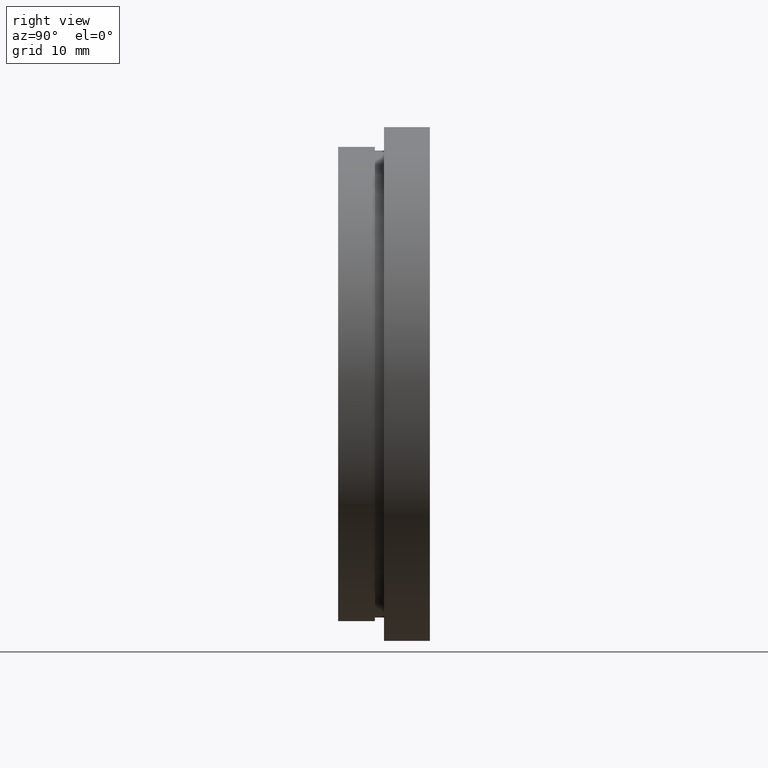
[diagram: clean part render]
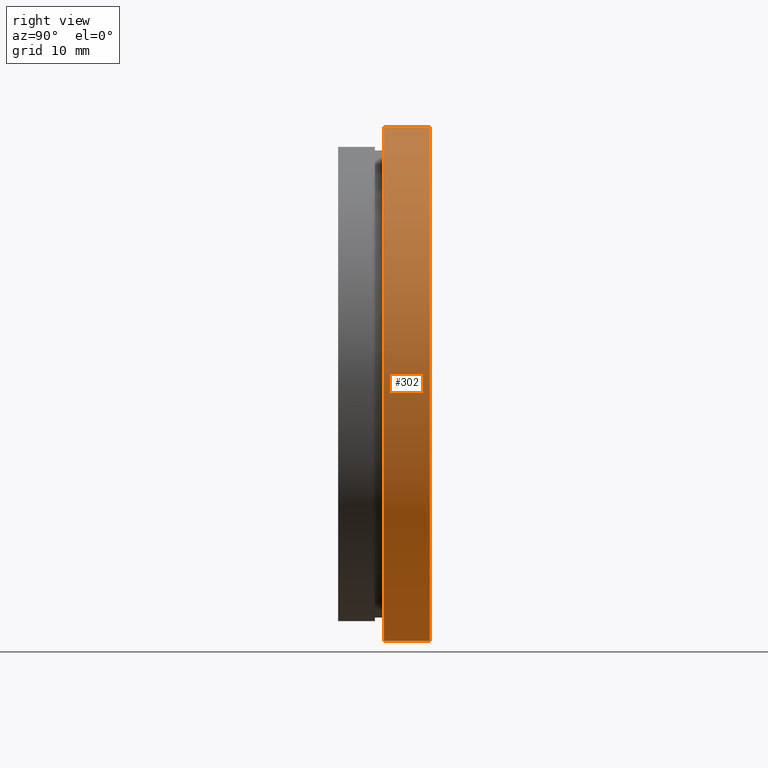
[diagram: same view with one face highlighted and labeled with its STEP entity id]
A machine part, right view. The second image highlights one B-rep face of the part: STEP entity #302.
In plain terms, the highlighted cylindrical surface (partial cylindrical patch) has radius 28 mm, axis along (-0, 1, -0).
Its self-contained STEP definition (entity closure, byte-faithful):
#12 = EDGE_CURVE ( 'NONE', #596, #565, #466, .T. ) ;
#15 = EDGE_CURVE ( 'NONE', #596, #142, #135, .T. ) ;
#24 = CARTESIAN_POINT ( 'NONE',  ( 3.429011037612589700E-015, 9.999999999999998200, -28.00000000000000400 ) ) ;
#27 = FACE_OUTER_BOUND ( 'NONE', #57, .T. ) ;
#54 = EDGE_CURVE ( 'NONE', #142, #457, #403, .T. ) ;
#57 = EDGE_LOOP ( 'NONE', ( #130, #580, #412, #500 ) ) ;
#95 = CARTESIAN_POINT ( 'NONE',  ( 3.429011037612589700E-015, 13.74468085106383300, -28.00000000000000400 ) ) ;
#122 = VECTOR ( 'NONE', #390, 1000.000000000000000 ) ;
#127 = CARTESIAN_POINT ( 'NONE',  ( 0.0000000000000000000, 5.000000000000000900, 28.00000000000000000 ) ) ;
#130 = ORIENTED_EDGE ( 'NONE', *, *, #15, .T. ) ;
#135 = CIRCLE ( 'NONE', #622, 28.00000000000000000 ) ;
#138 = CYLINDRICAL_SURFACE ( 'NONE', #600, 28.00000000000000400 ) ;
#142 = VERTEX_POINT ( 'NONE', #296 ) ;
#155 = CARTESIAN_POINT ( 'NONE',  ( 0.0000000000000000000, 9.999999999999998200, 28.00000000000000400 ) ) ;
#166 = EDGE_CURVE ( 'NONE', #565, #457, #343, .T. ) ;
#179 = DIRECTION ( 'NONE',  ( 0.0000000000000000000, 0.0000000000000000000, 1.000000000000000000 ) ) ;
#193 = DIRECTION ( 'NONE',  ( -0.0000000000000000000, 1.000000000000000000, -0.0000000000000000000 ) ) ;
#199 = DIRECTION ( 'NONE',  ( 0.0000000000000000000, 0.0000000000000000000, 1.000000000000000000 ) ) ;
#217 = VECTOR ( 'NONE', #442, 1000.000000000000000 ) ;
#242 = CARTESIAN_POINT ( 'NONE',  ( 0.0000000000000000000, 9.999999999999998200, 0.0000000000000000000 ) ) ;
#253 = CARTESIAN_POINT ( 'NONE',  ( 0.0000000000000000000, 5.000000000000000900, 0.0000000000000000000 ) ) ;
#296 = CARTESIAN_POINT ( 'NONE',  ( 3.429011037612589300E-015, 5.000000000000000900, -28.00000000000000000 ) ) ;
#302 = ADVANCED_FACE ( 'NONE', ( #27 ), #138, .T. ) ;
#304 = CARTESIAN_POINT ( 'NONE',  ( 0.0000000000000000000, 13.74468085106383300, 28.00000000000000400 ) ) ;
#305 = DIRECTION ( 'NONE',  ( -0.0000000000000000000, 1.000000000000000000, -0.0000000000000000000 ) ) ;
#339 = DIRECTION ( 'NONE',  ( 0.0000000000000000000, 0.0000000000000000000, 1.000000000000000000 ) ) ;
#343 = CIRCLE ( 'NONE', #396, 28.00000000000000400 ) ;
#390 = DIRECTION ( 'NONE',  ( -0.0000000000000000000, 1.000000000000000000, -0.0000000000000000000 ) ) ;
#396 = AXIS2_PLACEMENT_3D ( 'NONE', #242, #521, #179 ) ;
#403 = LINE ( 'NONE', #95, #122 ) ;
#412 = ORIENTED_EDGE ( 'NONE', *, *, #166, .F. ) ;
#441 = CARTESIAN_POINT ( 'NONE',  ( 0.0000000000000000000, 13.74468085106383300, 0.0000000000000000000 ) ) ;
#442 = DIRECTION ( 'NONE',  ( -0.0000000000000000000, 1.000000000000000000, -0.0000000000000000000 ) ) ;
#457 = VERTEX_POINT ( 'NONE', #24 ) ;
#466 = LINE ( 'NONE', #304, #217 ) ;
#500 = ORIENTED_EDGE ( 'NONE', *, *, #12, .F. ) ;
#521 = DIRECTION ( 'NONE',  ( -0.0000000000000000000, 1.000000000000000000, -0.0000000000000000000 ) ) ;
#565 = VERTEX_POINT ( 'NONE', #155 ) ;
#580 = ORIENTED_EDGE ( 'NONE', *, *, #54, .T. ) ;
#596 = VERTEX_POINT ( 'NONE', #127 ) ;
#600 = AXIS2_PLACEMENT_3D ( 'NONE', #441, #305, #199 ) ;
#622 = AXIS2_PLACEMENT_3D ( 'NONE', #253, #193, #339 ) ;